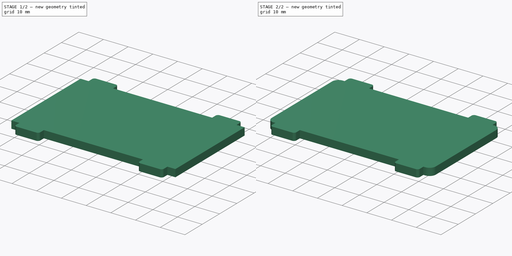
[diagram: build sequence overview — one tinted view per stage of 2, left to right]
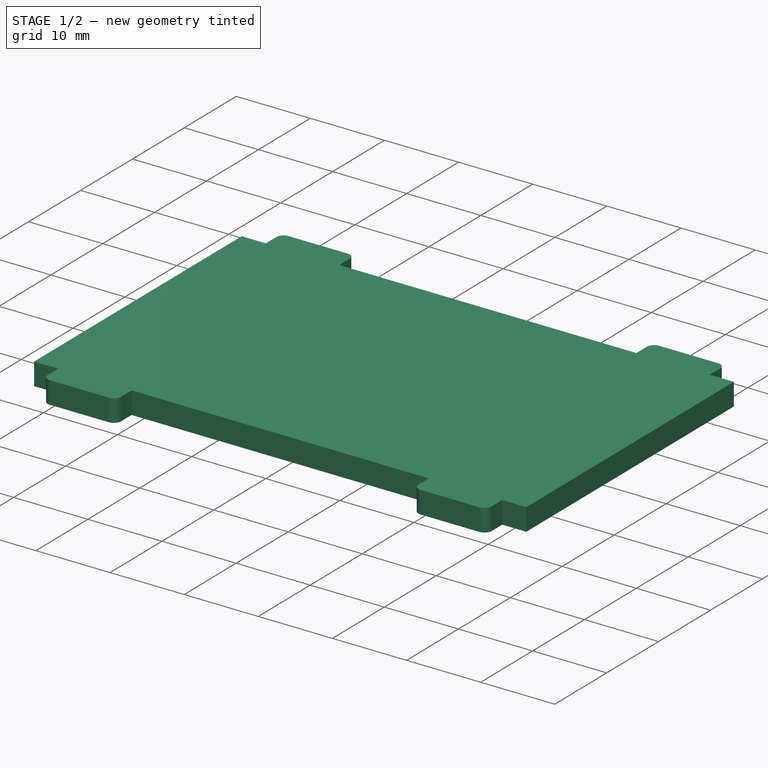
[diagram: stage 1 of 2 — iso view after this stage's code; geometry added in this stage tinted green]
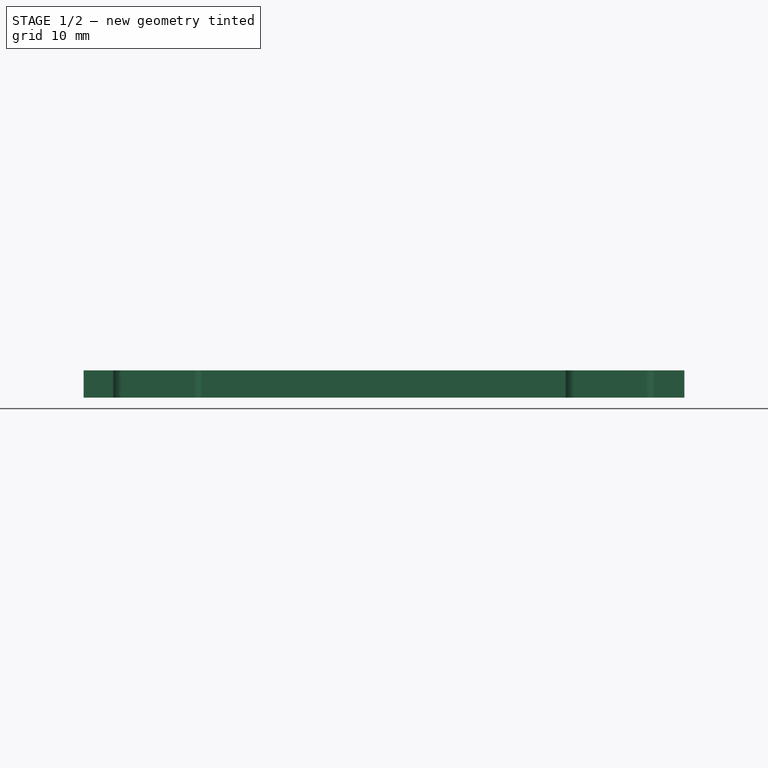
[diagram: stage 1 of 2 — front view after this stage's code; geometry added in this stage tinted green]
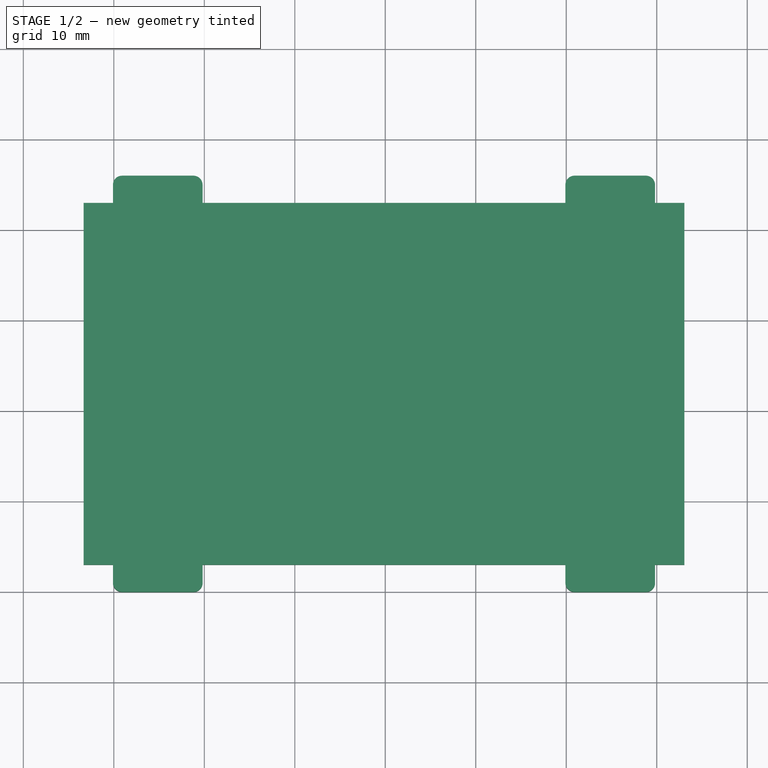
[diagram: stage 1 of 2 — top view after this stage's code; geometry added in this stage tinted green]
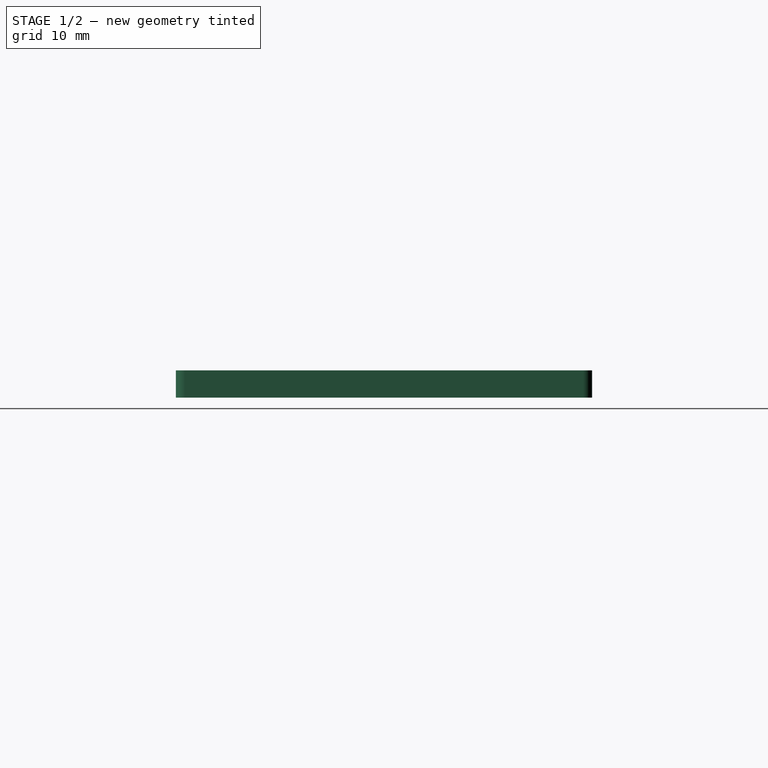
[diagram: stage 1 of 2 — right view after this stage's code; geometry added in this stage tinted green]
FCSTD DOCUMENT
Label: weather_kit_side_left
objects: Part::Fillet×2, Sketcher::SketchObject×1, PartDesign::Pad×1, Drawing::FeatureViewPart×1, Drawing::FeaturePage×1
note: 5 computed .brp shape members not serialized (recipe doc carries the construction recipe); baked Part::Feature solids carry a one-line shape summary decoded from their .brp

FEATURE [Sketcher::SketchObject] Sketch
  sketch-geometry (20):
    g0: LineSegment StartX=13.0584 StartY=32.9877 StartZ=0 EndX=13.0584 EndY=-7.0123 EndZ=0
    g1: LineSegment StartX=-53.3416 StartY=-7.0123 StartZ=0 EndX=-53.3416 EndY=32.9877 EndZ=0
    g2: LineSegment StartX=-50.0916 StartY=35.9877 StartZ=0 EndX=-40.1916 EndY=35.9877 EndZ=0
    g3: LineSegment StartX=-40.1916 StartY=35.9877 StartZ=0 EndX=-40.1916 EndY=32.9877 EndZ=0
    g4: LineSegment StartX=-50.0916 StartY=32.9877 StartZ=0 EndX=-50.0916 EndY=35.9877 EndZ=0
    g5: LineSegment StartX=-0.0915816 StartY=35.9877 StartZ=0 EndX=9.80842 EndY=35.9877 EndZ=0
    g6: LineSegment StartX=9.80842 StartY=35.9877 StartZ=0 EndX=9.80842 EndY=32.9877 EndZ=0
    g7: LineSegment StartX=-0.0915816 StartY=32.9877 StartZ=0 EndX=-0.0915816 EndY=35.9877 EndZ=0
    g8: LineSegment StartX=9.80842 StartY=-7.0123 StartZ=0 EndX=9.80842 EndY=-10.0123 EndZ=0
    g9: LineSegment StartX=9.80842 StartY=-10.0123 StartZ=0 EndX=-0.0915816 EndY=-10.0123 EndZ=0
    g10: LineSegment StartX=-0.0915816 StartY=-10.0123 StartZ=0 EndX=-0.0915816 EndY=-7.0123 EndZ=0
    g11: LineSegment StartX=-40.1916 StartY=-7.0123 StartZ=0 EndX=-40.1916 EndY=-10.0123 EndZ=0
    g12: LineSegment StartX=-40.1916 StartY=-10.0123 StartZ=0 EndX=-50.0916 EndY=-10.0123 EndZ=0
    g13: LineSegment StartX=-50.0916 StartY=-10.0123 StartZ=0 EndX=-50.0916 EndY=-7.0123 EndZ=0
    g14: LineSegment StartX=-50.0916 StartY=-7.0123 StartZ=0 EndX=-53.3416 EndY=-7.0123 EndZ=0
    g15: LineSegment StartX=-0.0915816 StartY=-7.0123 StartZ=0 EndX=-40.1916 EndY=-7.0123 EndZ=0
    g16: LineSegment StartX=9.80842 StartY=-7.0123 StartZ=0 EndX=13.0584 EndY=-7.0123 EndZ=0
    g17: LineSegment StartX=9.80842 StartY=32.9877 StartZ=0 EndX=13.0584 EndY=32.9877 EndZ=0
    g18: LineSegment StartX=-40.1916 StartY=32.9877 StartZ=0 EndX=-0.0915816 EndY=32.9877 EndZ=0
    g19: LineSegment StartX=-50.0916 StartY=32.9877 StartZ=0 EndX=-53.3416 EndY=32.9877 EndZ=0
  constraints (55):
    c: Vertical(g0)
    c: Vertical(g1)
    c: DistanceY(g0) = -40
    c: Coincident(g2,g3)
    c: Coincident(g4,g2)
    c: Horizontal(g2)
    c: Vertical(g3)
    c: Vertical(g4)
    c: Coincident(g5,g6)
    c: Coincident(g7,g5)
    c: Horizontal(g5)
    c: Vertical(g6)
    c: Vertical(g7)
    c: Coincident(g8,g9)
    c: Coincident(g9,g10)
    c: Horizontal(g9)
    c: Vertical(g8)
    c: Vertical(g10)
    c: Coincident(g11,g12)
    c: Coincident(g12,g13)
    c: Horizontal(g12)
    c: Vertical(g11)
    c: Vertical(g13)
    c: DistanceY(g11) = -3
    c: DistanceY(g8) = -3
    c: DistanceY(g6) = -3
    c: DistanceY(g3) = -3
    c: DistanceX(g2) = 9.9
    c: DistanceX(g5) = 9.9
    c: DistanceX(g12) = -9.9
    c: DistanceX(g9) = -9.9
    c: DistanceY(g10,g0) = 0
    c: DistanceY(g13,g1) = 0
    c: DistanceY(g1,g4) = 0
    c: DistanceY(g6,g0) = 0
    c: DistanceX(g6,g0) = 3.25
    c: DistanceX(g4,g1) = -3.25
    c: DistanceX(g13,g1) = -3.25
    c: DistanceX(g0,g8) = -3.25
    c: Coincident(g14,g13)
    c: Coincident(g14,g1)
    c: Coincident(g15,g10)
    c: Coincident(g15,g11)
    c: Horizontal(g15)
    c: Coincident(g16,g8)
    c: Coincident(g16,g0)
    c: Horizontal(g16)
    c: Coincident(g17,g6)
    c: Coincident(g17,g0)
    c: Coincident(g18,g3)
    c: Coincident(g18,g7)
    c: Horizontal(g18)
    c: Coincident(g19,g4)
    c: Coincident(g19,g1)
    c: DistanceX(g15) = -40.1
FEATURE [PartDesign::Pad] Pad
  Length = 3
  Length2 = 100
  Sketch = -> Sketch
  Type = 0
FEATURE [Part::Fillet] Fillet
  Base = -> Pad
  Edges = 8 edges r=1: [Edge5,Edge8,Edge17,Edge20,Edge35,Edge38,Edge47,Edge50]
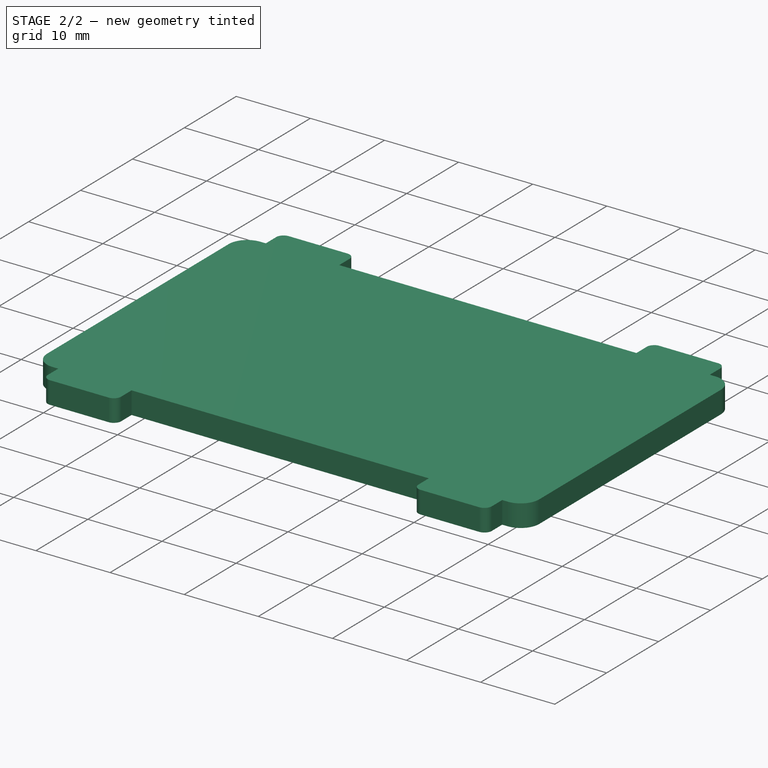
[diagram: stage 2 of 2 — iso view after this stage's code; geometry added in this stage tinted green]
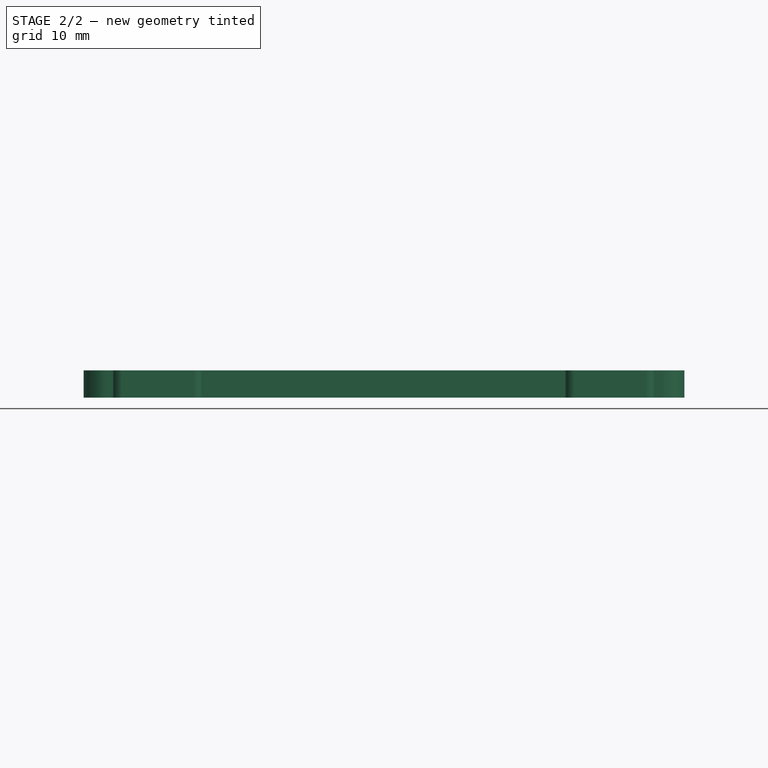
[diagram: stage 2 of 2 — front view after this stage's code; geometry added in this stage tinted green]
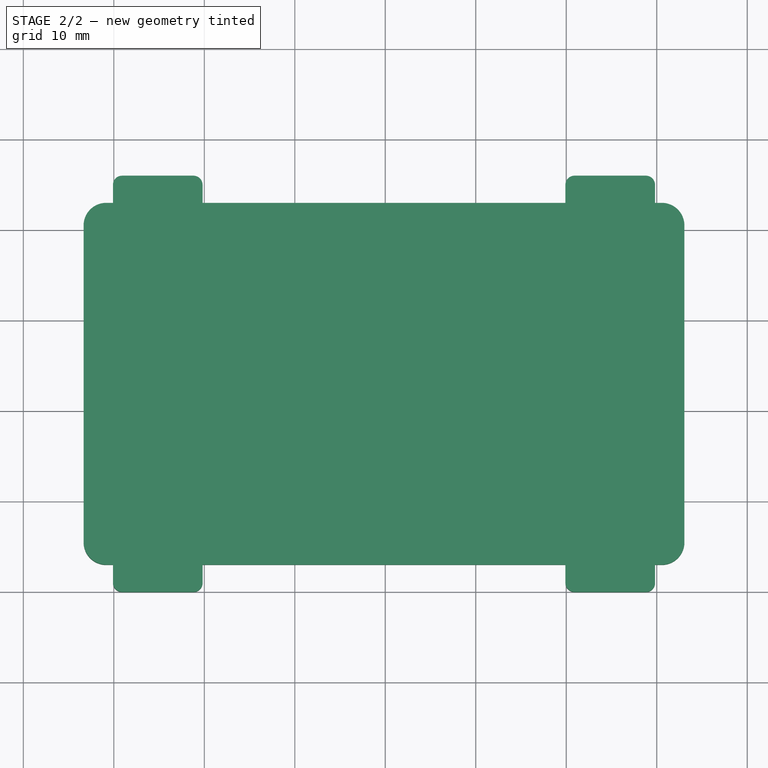
[diagram: stage 2 of 2 — top view after this stage's code; geometry added in this stage tinted green]
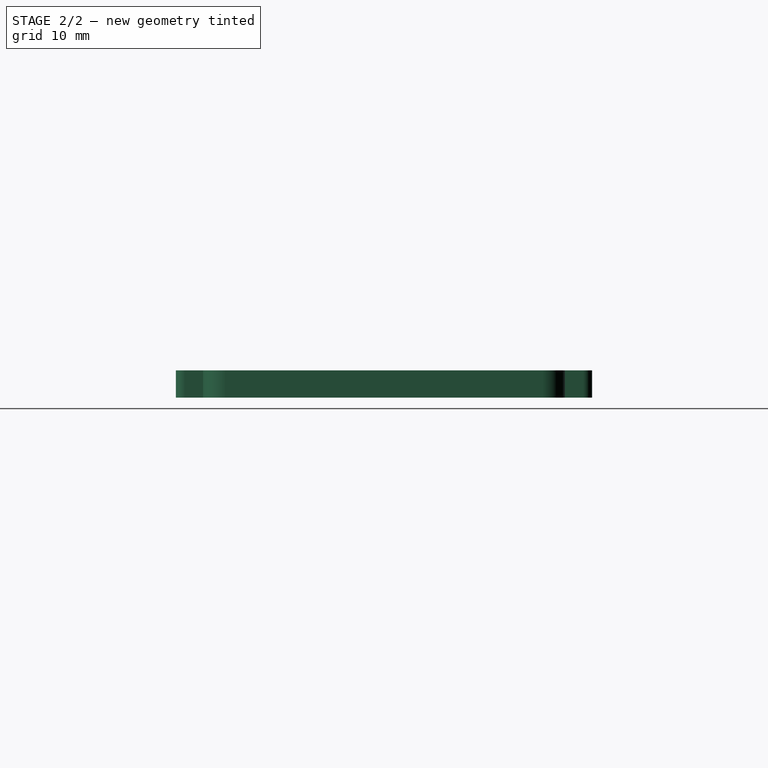
[diagram: stage 2 of 2 — right view after this stage's code; geometry added in this stage tinted green]
FEATURE [Part::Fillet] Fillet001
  Base = -> Fillet
  Edges = 4 edges r=2.5: [Edge34,Edge62,Edge79,Edge81]
  Placement = pos=(200,100,0) rot=(0,0,1;0rad)
FEATURE [Drawing::FeatureViewPart] View
  Direction = (0,0,1)
  LineWidth = 0.35
  Rotation = 0
  ShowHiddenLines = false
  ShowSmoothLines = false
  Source = -> Fillet001
  Tolerance = 0.05
  ViewResult = <blob: 2090 chars omitted>
  X = 10
  Y = 10
FEATURE [Drawing::FeaturePage] Page
  EditableTexts = AUTHOR NAME | CREATION DATE | SUPERVISOR NAME | CHECK DATE | SCALE | WEIGHT | NUMBER | SHEET | TITLE | SUBTITLE
  Group = -> [View]
  Template = <path>
note: 1 file-system path scrubbed to <path> (originals preserved in the JSON sidecar)
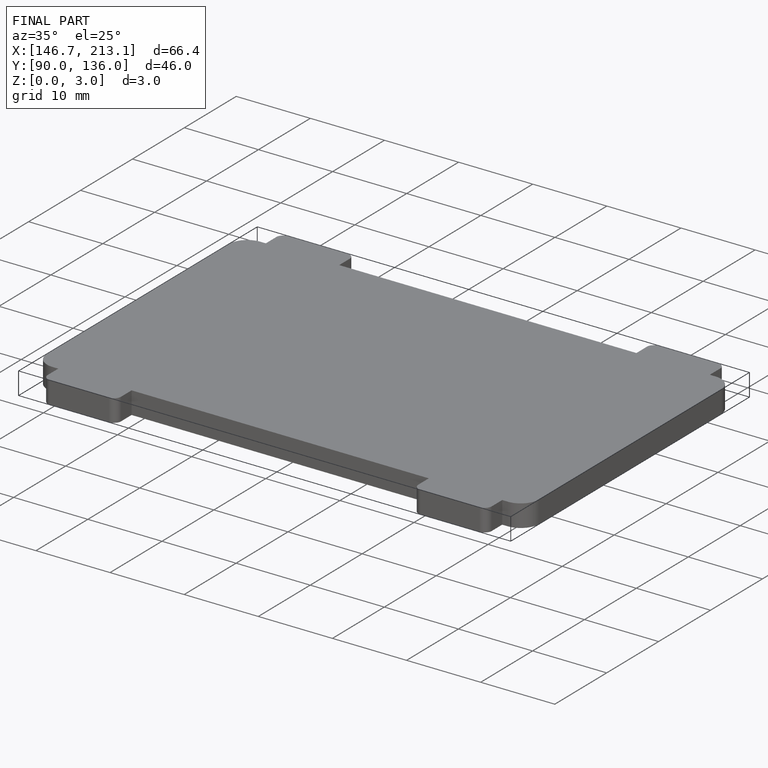
[diagram: finished part — iso view with bounding-box wireframe]
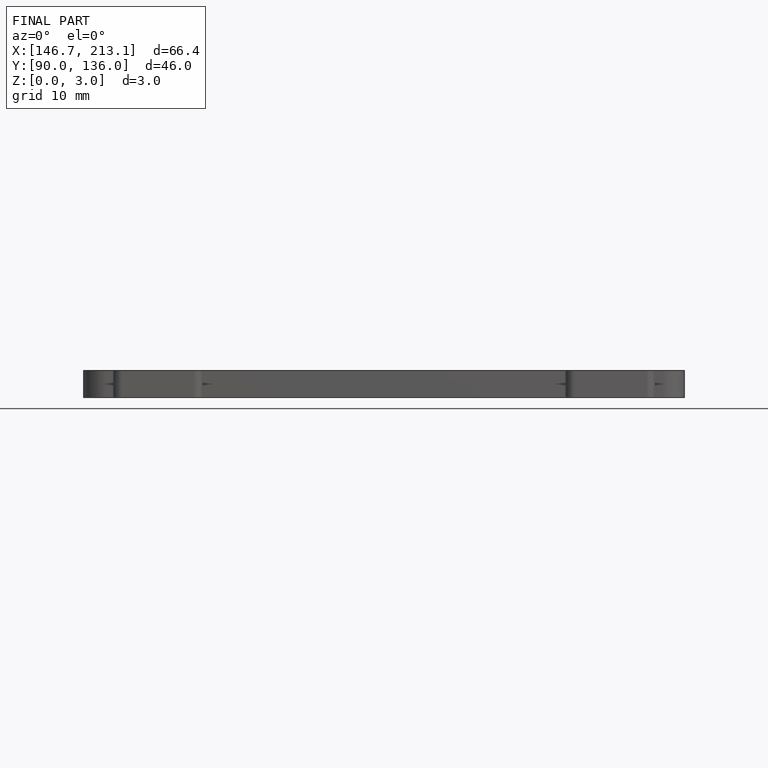
[diagram: finished part — front view with bounding-box wireframe]
